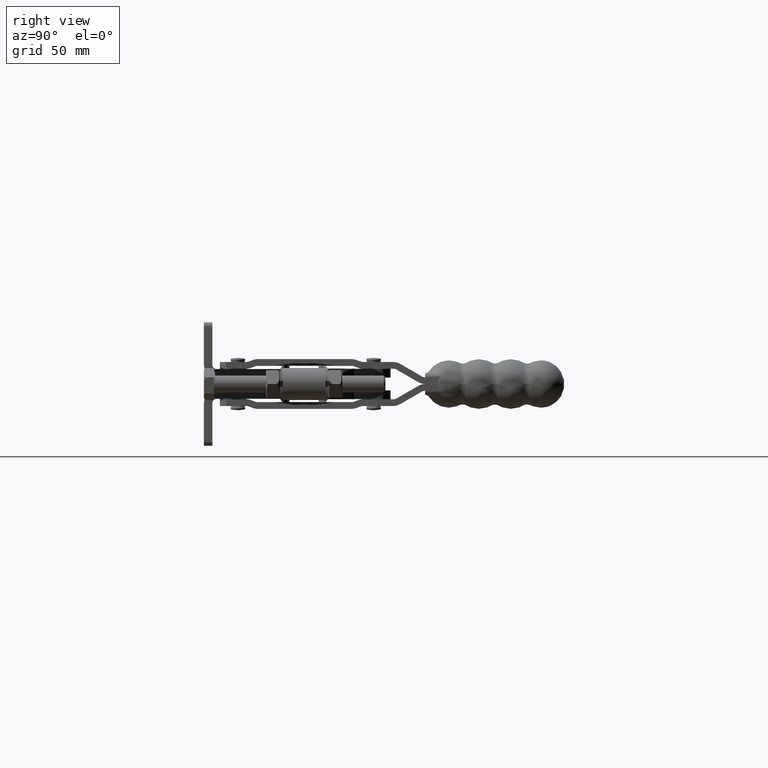
[diagram: clean part render]
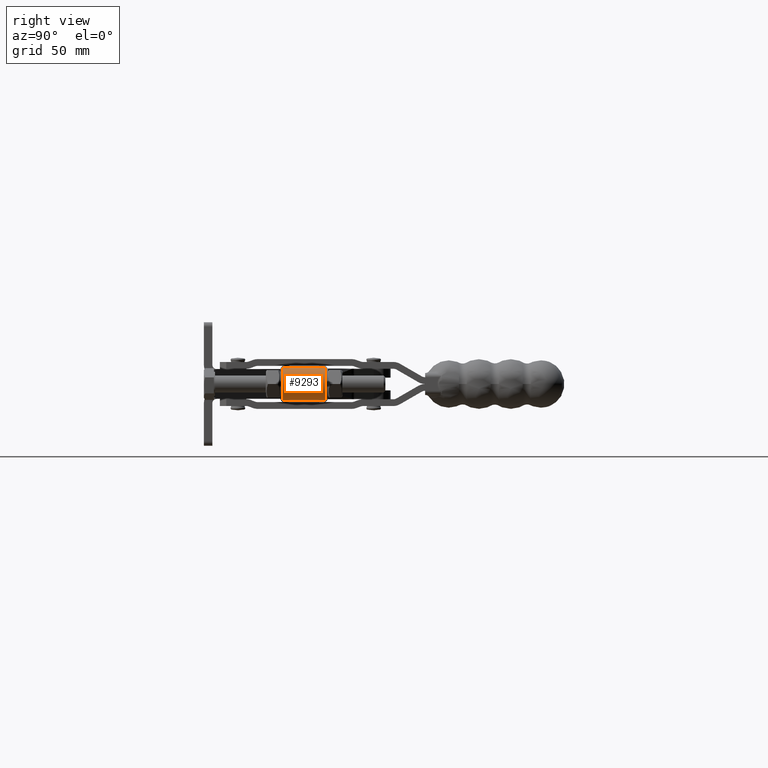
[diagram: same view with one face highlighted and labeled with its STEP entity id]
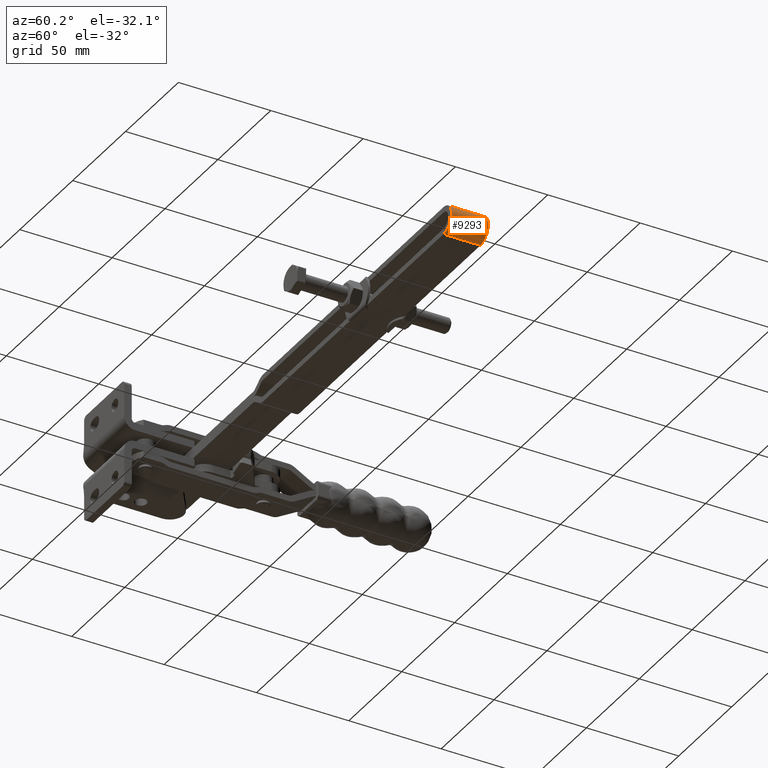
[diagram: same view with one face highlighted and labeled with its STEP entity id]
A machine part, right view. The second image highlights one B-rep face of the part: STEP entity #9293.
A second angle (auxiliary view) of the same face is appended — the face is thin or edge-on in the first view.
In plain terms, the highlighted cylindrical surface (edge-blend (fillet) strip) has radius 7.5 mm, axis along (0, -1, -0).
Its self-contained STEP definition (entity closure, byte-faithful):
#9252=CARTESIAN_POINT('',(258.61523909634911,55.897780918954339,2.999564478020518));
#9253=DIRECTION('',(0.000041131569925,-0.999999999154097,-9.105784E-021));
#9254=DIRECTION('',(0.0,0.0,-1.0));
#9255=AXIS2_PLACEMENT_3D('',#9252,#9253,#9254);
#9256=CYLINDRICAL_SURFACE('',#9255,7.500000000000004);
#9257=CARTESIAN_POINT('',(258.61482778064988,65.897780910495214,-4.500435521979486));
#9258=VERTEX_POINT('',#9257);
#9259=CARTESIAN_POINT('',(258.61482778064988,65.897780910495214,10.499564478020522));
#9260=VERTEX_POINT('',#9259);
#9261=CARTESIAN_POINT('',(258.61482778064988,65.897780910495172,2.999564478020518));
#9262=DIRECTION('',(0.000041131569928,-0.999999999154097,0.0));
#9263=DIRECTION('',(0.0,0.0,-1.0));
#9264=AXIS2_PLACEMENT_3D('',#9261,#9262,#9263);
#9265=CIRCLE('',#9264,7.500000000000004);
#9266=EDGE_CURVE('',#9258,#9260,#9265,.T.);
#9267=ORIENTED_EDGE('',*,*,#9266,.T.);
#9268=CARTESIAN_POINT('',(258.6156504120483,45.897780927413265,10.499564478020522));
#9269=VERTEX_POINT('',#9268);
#9270=CARTESIAN_POINT('',(258.6156504120483,45.897780927413272,10.499564478020522));
#9271=DIRECTION('',(-0.000041131569924,0.999999999154097,0.0));
#9272=VECTOR('',#9271,20.000000000000004);
#9273=LINE('',#9270,#9272);
#9274=EDGE_CURVE('',#9269,#9260,#9273,.T.);
#9275=ORIENTED_EDGE('',*,*,#9274,.F.);
#9276=CARTESIAN_POINT('',(258.6156504120483,45.897780927413265,-4.500435521979486));
#9277=VERTEX_POINT('',#9276);
#9278=CARTESIAN_POINT('',(258.6156504120483,45.897780927413265,2.999564478020518));
#9279=DIRECTION('',(-0.000041131569926,0.999999999154097,0.0));
#9280=DIRECTION('',(0.0,0.0,-1.0));
#9281=AXIS2_PLACEMENT_3D('',#9278,#9279,#9280);
#9282=CIRCLE('',#9281,7.500000000000004);
#9283=EDGE_CURVE('',#9269,#9277,#9282,.T.);
#9284=ORIENTED_EDGE('',*,*,#9283,.T.);
#9285=CARTESIAN_POINT('',(258.61482778064982,65.897780910495214,-4.500435521979486));
#9286=DIRECTION('',(0.000041131569924,-0.999999999154097,0.0));
#9287=VECTOR('',#9286,19.999999999999996);
#9288=LINE('',#9285,#9287);
#9289=EDGE_CURVE('',#9258,#9277,#9288,.T.);
#9290=ORIENTED_EDGE('',*,*,#9289,.F.);
#9291=EDGE_LOOP('',(#9267,#9275,#9284,#9290));
#9292=FACE_OUTER_BOUND('',#9291,.T.);
#9293=ADVANCED_FACE('',(#9292),#9256,.T.);